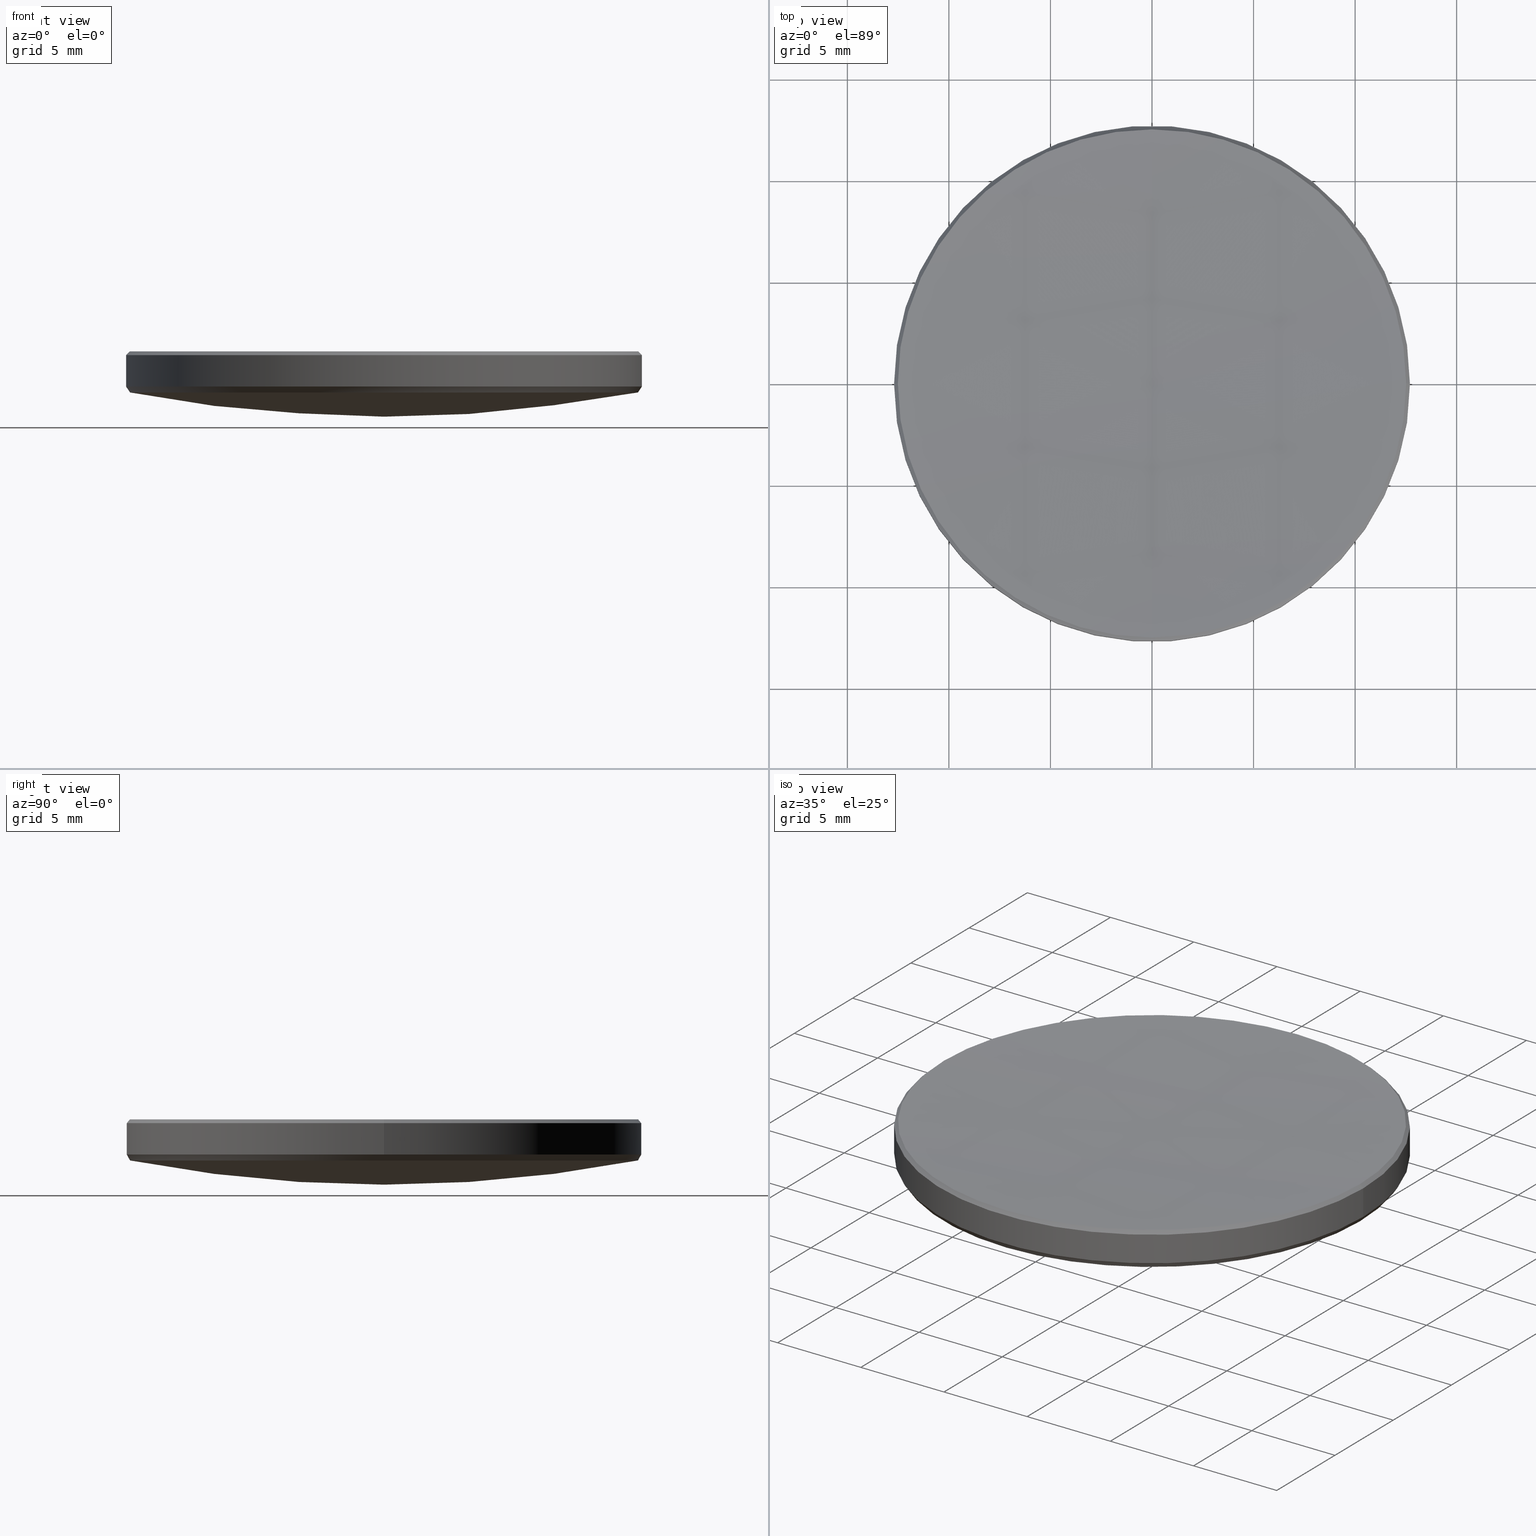
[diagram: canonical four-view strip — front | top / right | iso, engineering-drawing reading convention]
A machine part, canonical four-view strip (front | top / right | iso — engineering-drawing reading convention). The complete STEP part file that produces these views, byte-faithful:
ISO-10303-21;
HEADER;
FILE_DESCRIPTION (( 'STEP AP214' ),
    '1' );
FILE_NAME ('GLM1-025B-200-NIR.STEP',
    '2024-08-09T02:17:12',
    ( 'Windows User' ),
    ( 'P R C' ),
    'SwSTEP 2.0',
    'SolidWorks 2022',
    '' );
FILE_SCHEMA (( 'AUTOMOTIVE_DESIGN' ));
ENDSEC;

DATA;
#1 = AXIS2_PLACEMENT_3D ( 'NONE', #134, #289, #82 ) ;
#2 = PRESENTATION_LAYER_ASSIGNMENT (  '', '', ( #329 ) ) ;
#3 = EDGE_CURVE ( 'NONE', #166, #197, #55, .T. ) ;
#4 = DIRECTION ( 'NONE',  ( 1.000000000000000000, 0.000000000000000000, 0.000000000000000000 ) ) ;
#5 = EDGE_CURVE ( 'NONE', #220, #319, #159, .T. ) ;
#6 = CARTESIAN_POINT ( 'NONE',  ( 12.51297231911478214, 1.532397149842335037E-15, 5.987027680885242731 ) ) ;
#7 = CIRCLE ( 'NONE', #199, 12.69999999999999929 ) ;
#8 = FACE_OUTER_BOUND ( 'NONE', #143, .T. ) ;
#9 = ORIENTED_EDGE ( 'NONE', *, *, #113, .F. ) ;
#10 = CARTESIAN_POINT ( 'NONE',  ( -12.69999999999999929, 0.000000000000000000, 5.800000000000027356 ) ) ;
#11 = ORIENTED_EDGE ( 'NONE', *, *, #198, .F. ) ;
#12 = DIRECTION ( 'NONE',  ( -1.000000000000000000, 0.000000000000000000, 0.000000000000000000 ) ) ;
#13 = ORIENTED_EDGE ( 'NONE', *, *, #5, .F. ) ;
#14 =( NAMED_UNIT ( * ) SI_UNIT ( $, .STERADIAN. ) SOLID_ANGLE_UNIT ( ) );
#15 = CARTESIAN_POINT ( 'NONE',  ( 0.000000000000000000, 0.000000000000000000, 10.00000000000000000 ) ) ;
#16 = ORIENTED_EDGE ( 'NONE', *, *, #198, .T. ) ;
#17 = CARTESIAN_POINT ( 'NONE',  ( 12.69999999999999929, 0.000000000000000000, 4.253353967830220128 ) ) ;
#18 = EDGE_CURVE ( 'NONE', #325, #195, #36, .T. ) ;
#19 = EDGE_LOOP ( 'NONE', ( #11, #253, #218, #90 ) ) ;
#20 = DIRECTION ( 'NONE',  ( 1.000000000000000000, 0.000000000000000000, 0.000000000000000000 ) ) ;
#21 = VECTOR ( 'NONE', #104, 1000.000000000000114 ) ;
#22 = FILL_AREA_STYLE ('',( #129 ) ) ;
#23 = AXIS2_PLACEMENT_3D ( 'NONE', #50, #232, #286 ) ;
#24 = CARTESIAN_POINT ( 'NONE',  ( 0.000000000000000000, 0.000000000000000000, 68.91943083545942272 ) ) ;
#25 = AXIS2_PLACEMENT_3D ( 'NONE', #93, #299, #273 ) ;
#26 = APPLICATION_PROTOCOL_DEFINITION ( 'draft international standard', 'automotive_design', 1998, #193 ) ;
#27 = AXIS2_PLACEMENT_3D ( 'NONE', #80, #186, #4 ) ;
#28 = CARTESIAN_POINT ( 'NONE',  ( 0.000000000000000000, 0.000000000000000000, 68.91943083545942272 ) ) ;
#29 = DIRECTION ( 'NONE',  ( 0.000000000000000000, 0.000000000000000000, -1.000000000000000000 ) ) ;
#30 = DIRECTION ( 'NONE',  ( -0.5581967294551084535, 6.835938380217195988E-17, 0.8297086303188730971 ) ) ;
#31 = ORIENTED_EDGE ( 'NONE', *, *, #113, .T. ) ;
#32 =( NAMED_UNIT ( * ) SI_UNIT ( $, .STERADIAN. ) SOLID_ANGLE_UNIT ( ) );
#33 = CARTESIAN_POINT ( 'NONE',  ( 0.000000000000000000, 1.115592001683281265E-14, 5.556818679172486952 ) ) ;
#34 = AXIS2_PLACEMENT_3D ( 'NONE', #145, #224, #153 ) ;
#35 = DIRECTION ( 'NONE',  ( 1.000000000000000000, 0.000000000000000000, 0.000000000000000000 ) ) ;
#36 = LINE ( 'NONE', #17, #229 ) ;
#37 = ORIENTED_EDGE ( 'NONE', *, *, #313, .F. ) ;
#38 = ADVANCED_FACE ( 'NONE', ( #328 ), #148, .F. ) ;
#39 = DIRECTION ( 'NONE',  ( -1.224646799147352961E-16, -1.000000000000000000, 0.000000000000000000 ) ) ;
#40 = ORIENTED_EDGE ( 'NONE', *, *, #219, .F. ) ;
#41 = EDGE_CURVE ( 'NONE', #197, #220, #81, .T. ) ;
#42 = SURFACE_SIDE_STYLE ('',( #215 ) ) ;
#43 = ORIENTED_EDGE ( 'NONE', *, *, #161, .F. ) ;
#44 = ORIENTED_EDGE ( 'NONE', *, *, #18, .T. ) ;
#45 = AXIS2_PLACEMENT_3D ( 'NONE', #252, #294, #321 ) ;
#46 = PRODUCT_DEFINITION_CONTEXT ( 'detailed design', #193, 'design' ) ;
#47 = CARTESIAN_POINT ( 'NONE',  ( 0.000000000000000000, 0.000000000000000000, 3.961956115965656444 ) ) ;
#48 = DIRECTION ( 'NONE',  ( -1.000000000000000000, 0.000000000000000000, 0.000000000000000000 ) ) ;
#49 =( LENGTH_UNIT ( ) NAMED_UNIT ( * ) SI_UNIT ( .MILLI., .METRE. ) );
#50 = CARTESIAN_POINT ( 'NONE',  ( 0.000000000000000000, 0.000000000000000000, 68.91943083545942272 ) ) ;
#51 = UNCERTAINTY_MEASURE_WITH_UNIT (LENGTH_MEASURE( 1.000000000000000082E-05 ), #251, 'distance_accuracy_value', 'NONE');
#52 = CARTESIAN_POINT ( 'NONE',  ( -1.531293274863309419E-15, -12.50395849586554675, 3.961956115965656444 ) ) ;
#53 = ADVANCED_FACE ( 'NONE', ( #87 ), #173, .T. ) ;
#54 = CIRCLE ( 'NONE', #96, 182.1899999999999977 ) ;
#55 = CIRCLE ( 'NONE', #45, 12.51297231911478569 ) ;
#56 = PRODUCT_DEFINITION ( 'δ֪', '', #107, #46 ) ;
#57 = LINE ( 'NONE', #163, #21 ) ;
#58 = SHAPE_DEFINITION_REPRESENTATION ( #284, #295 ) ;
#59 = DIRECTION ( 'NONE',  ( 1.000000000000000000, 0.000000000000000000, 0.000000000000000000 ) ) ;
#60 = CARTESIAN_POINT ( 'NONE',  ( 0.000000000000000000, 0.000000000000000000, 187.7468186791724918 ) ) ;
#61 = LINE ( 'NONE', #245, #314 ) ;
#62 = VECTOR ( 'NONE', #184, 1000.000000000000114 ) ;
#63 =( NAMED_UNIT ( * ) PLANE_ANGLE_UNIT ( ) SI_UNIT ( $, .RADIAN. ) );
#64 = DIRECTION ( 'NONE',  ( -1.000000000000000000, 1.224646799147353207E-16, 0.000000000000000000 ) ) ;
#65 = VERTEX_POINT ( 'NONE', #33 ) ;
#66 = ORIENTED_EDGE ( 'NONE', *, *, #207, .T. ) ;
#67 = EDGE_CURVE ( 'NONE', #149, #279, #244, .T. ) ;
#68 = FILL_AREA_STYLE ('',( #323 ) ) ;
#69 = DIRECTION ( 'NONE',  ( 0.5581967294551084535, 0.000000000000000000, 0.8297086303188730971 ) ) ;
#70 = CARTESIAN_POINT ( 'NONE',  ( 0.000000000000000000, 0.000000000000000000, 187.7468186791724918 ) ) ;
#71 = ORIENTED_EDGE ( 'NONE', *, *, #185, .F. ) ;
#72 = DIRECTION ( 'NONE',  ( -0.000000000000000000, -0.000000000000000000, 1.000000000000000000 ) ) ;
#73 = AXIS2_PLACEMENT_3D ( 'NONE', #114, #248, #39 ) ;
#74 = CARTESIAN_POINT ( 'NONE',  ( 0.000000000000000000, 0.000000000000000000, 5.800000000000027356 ) ) ;
#75 = DIRECTION ( 'NONE',  ( 0.000000000000000000, 0.000000000000000000, -1.000000000000000000 ) ) ;
#76 = ADVANCED_FACE ( 'NONE', ( #221 ), #201, .T. ) ;
#77 = CIRCLE ( 'NONE', #167, 12.51297231911478569 ) ;
#78 = DIRECTION ( 'NONE',  ( -1.000000000000000000, 0.000000000000000000, 0.000000000000000000 ) ) ;
#79 = LINE ( 'NONE', #242, #132 ) ;
#80 = CARTESIAN_POINT ( 'NONE',  ( 0.000000000000000000, 0.000000000000000000, 4.253353967830220128 ) ) ;
#81 = CIRCLE ( 'NONE', #280, 12.51297231911478569 ) ;
#82 = DIRECTION ( 'NONE',  ( -1.000000000000000000, 0.000000000000000000, 0.000000000000000000 ) ) ;
#83 = EDGE_CURVE ( 'NONE', #298, #94, #183, .T. ) ;
#84 = CARTESIAN_POINT ( 'NONE',  ( 0.000000000000000000, 0.000000000000000000, 5.987027680885242731 ) ) ;
#85 = EDGE_LOOP ( 'NONE', ( #122, #16, #216, #152 ) ) ;
#86 = VECTOR ( 'NONE', #238, 1000.000000000000000 ) ;
#87 = FACE_OUTER_BOUND ( 'NONE', #151, .T. ) ;
#88 = APPLICATION_CONTEXT ( 'automotive_design' ) ;
#89 = EDGE_CURVE ( 'NONE', #200, #325, #301, .T. ) ;
#90 = ORIENTED_EDGE ( 'NONE', *, *, #5, .T. ) ;
#91 = ORIENTED_EDGE ( 'NONE', *, *, #103, .F. ) ;
#92 = EDGE_LOOP ( 'NONE', ( #274, #66, #71, #40, #146 ) ) ;
#93 = CARTESIAN_POINT ( 'NONE',  ( 0.000000000000000000, 0.000000000000000000, 5.987027680885187664 ) ) ;
#94 = VERTEX_POINT ( 'NONE', #10 ) ;
#95 = DIRECTION ( 'NONE',  ( -1.000000000000000000, 0.000000000000000000, 0.000000000000000000 ) ) ;
#96 = AXIS2_PLACEMENT_3D ( 'NONE', #290, #64, #265 ) ;
#97 = DIRECTION ( 'NONE',  ( 0.000000000000000000, 1.000000000000000000, 0.000000000000000000 ) ) ;
#98 = CLOSED_SHELL ( 'NONE', ( #178, #76, #38, #208, #53, #285, #127, #174, #259, #235 ) ) ;
#99 = DIRECTION ( 'NONE',  ( -0.000000000000000000, -0.000000000000000000, 1.000000000000000000 ) ) ;
#100 = CARTESIAN_POINT ( 'NONE',  ( 0.000000000000000000, 0.000000000000000000, 187.7468186791724918 ) ) ;
#101 = EDGE_CURVE ( 'NONE', #326, #149, #213, .T. ) ;
#102 = PRESENTATION_STYLE_ASSIGNMENT (( #202 ) ) ;
#103 = EDGE_CURVE ( 'NONE', #325, #149, #111, .T. ) ;
#104 = DIRECTION ( 'NONE',  ( -0.7071067811865507924, 0.000000000000000000, -0.7071067811865441310 ) ) ;
#105 = MANIFOLD_SOLID_BREP ( '����1', #98 ) ;
#106 = SPHERICAL_SURFACE ( 'NONE', #236, 66.15000000000000568 ) ;
#107 = PRODUCT_DEFINITION_FORMATION_WITH_SPECIFIED_SOURCE ( '�κ�', '', #230, .NOT_KNOWN. ) ;
#108 = CYLINDRICAL_SURFACE ( 'NONE', #1, 12.69999999999999929 ) ;
#109 = EDGE_CURVE ( 'NONE', #319, #166, #77, .T. ) ;
#110 = COLOUR_RGB ( '',1.000000000000000000, 1.000000000000000000, 1.000000000000000000 ) ;
#111 = CIRCLE ( 'NONE', #256, 12.50395849586555030 ) ;
#112 = ORIENTED_EDGE ( 'NONE', *, *, #304, .T. ) ;
#113 = EDGE_CURVE ( 'NONE', #326, #200, #139, .T. ) ;
#114 = CARTESIAN_POINT ( 'NONE',  ( 0.000000000000000000, 0.000000000000000000, 68.91943083545942272 ) ) ;
#115 = ORIENTED_EDGE ( 'NONE', *, *, #101, .T. ) ;
#116 = CONICAL_SURFACE ( 'NONE', #308, 12.51297231911478214, 0.7853981633974530530 ) ;
#117 = PRESENTATION_STYLE_ASSIGNMENT (( #141 ) ) ;
#118 = ORIENTED_EDGE ( 'NONE', *, *, #304, .F. ) ;
#119 = ORIENTED_EDGE ( 'NONE', *, *, #67, .T. ) ;
#120 = DIRECTION ( 'NONE',  ( 0.000000000000000000, 0.000000000000000000, -1.000000000000000000 ) ) ;
#121 = DIRECTION ( 'NONE',  ( 0.000000000000000000, 0.000000000000000000, -1.000000000000000000 ) ) ;
#122 = ORIENTED_EDGE ( 'NONE', *, *, #310, .F. ) ;
#123 = ORIENTED_EDGE ( 'NONE', *, *, #18, .F. ) ;
#124 = AXIS2_PLACEMENT_3D ( 'NONE', #135, #288, #78 ) ;
#125 = AXIS2_PLACEMENT_3D ( 'NONE', #74, #231, #332 ) ;
#126 = SURFACE_STYLE_FILL_AREA ( #22 ) ;
#127 = ADVANCED_FACE ( 'NONE', ( #180 ), #156, .T. ) ;
#128 = DIRECTION ( 'NONE',  ( -1.000000000000000000, 0.000000000000000000, 0.000000000000000000 ) ) ;
#129 = FILL_AREA_STYLE_COLOUR ( '', #227 ) ;
#130 = FACE_OUTER_BOUND ( 'NONE', #19, .T. ) ;
#131 = AXIS2_PLACEMENT_3D ( 'NONE', #297, #142, #254 ) ;
#132 = VECTOR ( 'NONE', #30, 1000.000000000000000 ) ;
#133 = DIRECTION ( 'NONE',  ( -1.000000000000000000, 0.000000000000000000, 0.000000000000000000 ) ) ;
#134 = CARTESIAN_POINT ( 'NONE',  ( 0.000000000000000000, 0.000000000000000000, 10.00000000000000000 ) ) ;
#135 = CARTESIAN_POINT ( 'NONE',  ( 0.000000000000000000, 0.000000000000000000, 4.253353967830220128 ) ) ;
#136 = FACE_OUTER_BOUND ( 'NONE', #190, .T. ) ;
#137 = ORIENTED_EDGE ( 'NONE', *, *, #67, .F. ) ;
#138 = STYLED_ITEM ( 'NONE', ( #117 ), #295 ) ;
#139 = CIRCLE ( 'NONE', #155, 66.15000000000000568 ) ;
#140 = AXIS2_PLACEMENT_3D ( 'NONE', #171, #246, #275 ) ;
#141 = SURFACE_STYLE_USAGE ( .BOTH. , #42 ) ;
#142 = DIRECTION ( 'NONE',  ( 0.000000000000000000, 0.000000000000000000, -1.000000000000000000 ) ) ;
#143 = EDGE_LOOP ( 'NONE', ( #281, #169, #13, #276, #322 ) ) ;
#144 = APPLICATION_PROTOCOL_DEFINITION ( 'draft international standard', 'automotive_design', 1998, #88 ) ;
#145 = CARTESIAN_POINT ( 'NONE',  ( 0.000000000000000000, 0.000000000000000000, 5.800000000000027356 ) ) ;
#146 = ORIENTED_EDGE ( 'NONE', *, *, #41, .F. ) ;
#147 =( NAMED_UNIT ( * ) PLANE_ANGLE_UNIT ( ) SI_UNIT ( $, .RADIAN. ) );
#148 = SPHERICAL_SURFACE ( 'NONE', #234, 182.1899999999999977 ) ;
#149 = VERTEX_POINT ( 'NONE', #52 ) ;
#150 = CARTESIAN_POINT ( 'NONE',  ( 0.000000000000000000, 0.000000000000000000, 0.000000000000000000 ) ) ;
#151 = EDGE_LOOP ( 'NONE', ( #192, #112, #165, #37 ) ) ;
#152 = ORIENTED_EDGE ( 'NONE', *, *, #3, .T. ) ;
#153 = DIRECTION ( 'NONE',  ( 1.000000000000000000, 0.000000000000000000, 0.000000000000000000 ) ) ;
#154 = AXIS2_PLACEMENT_3D ( 'NONE', #312, #29, #59 ) ;
#155 = AXIS2_PLACEMENT_3D ( 'NONE', #24, #307, #75 ) ;
#156 = SPHERICAL_SURFACE ( 'NONE', #23, 66.15000000000000568 ) ;
#157 = CARTESIAN_POINT ( 'NONE',  ( 0.000000000000000000, 0.000000000000000000, 4.253353967830220128 ) ) ;
#158 =( NAMED_UNIT ( * ) PLANE_ANGLE_UNIT ( ) SI_UNIT ( $, .RADIAN. ) );
#159 = CIRCLE ( 'NONE', #25, 12.51297231911478569 ) ;
#160 = FACE_OUTER_BOUND ( 'NONE', #268, .T. ) ;
#161 = EDGE_CURVE ( 'NONE', #293, #195, #7, .T. ) ;
#162 = CARTESIAN_POINT ( 'NONE',  ( -12.69999999999999929, 0.000000000000000000, 4.253353967830220128 ) ) ;
#163 = CARTESIAN_POINT ( 'NONE',  ( -12.51297231911478214, 0.000000000000000000, 5.987027680885242731 ) ) ;
#164 = CARTESIAN_POINT ( 'NONE',  ( 0.000000000000000000, 4.050519288179870232E-15, 2.769430835459427254 ) ) ;
#165 = ORIENTED_EDGE ( 'NONE', *, *, #247, .T. ) ;
#166 = VERTEX_POINT ( 'NONE', #260 ) ;
#167 = AXIS2_PLACEMENT_3D ( 'NONE', #204, #99, #258 ) ;
#168 = ORIENTED_EDGE ( 'NONE', *, *, #89, .F. ) ;
#169 = ORIENTED_EDGE ( 'NONE', *, *, #109, .F. ) ;
#170 = CARTESIAN_POINT ( 'NONE',  ( -1.532397149842306047E-15, -12.51297231911454411, 5.987027680885187664 ) ) ;
#171 = CARTESIAN_POINT ( 'NONE',  ( 0.000000000000000000, 0.000000000000000000, 4.253353967830220128 ) ) ;
#172 = PRODUCT_CONTEXT ( 'NONE', #88, 'mechanical' ) ;
#173 = CYLINDRICAL_SURFACE ( 'NONE', #176, 12.69999999999999929 ) ;
#174 = ADVANCED_FACE ( 'NONE', ( #130 ), #303, .F. ) ;
#175 = ORIENTED_EDGE ( 'NONE', *, *, #266, .F. ) ;
#176 = AXIS2_PLACEMENT_3D ( 'NONE', #15, #196, #95 ) ;
#177 = CARTESIAN_POINT ( 'NONE',  ( 0.000000000000000000, 0.000000000000000000, 5.987027680885242731 ) ) ;
#178 = ADVANCED_FACE ( 'NONE', ( #331 ), #309, .T. ) ;
#179 = CONICAL_SURFACE ( 'NONE', #27, 12.69999999999999929, 0.5922108289621466071 ) ;
#180 = FACE_OUTER_BOUND ( 'NONE', #194, .T. ) ;
#181 = AXIS2_PLACEMENT_3D ( 'NONE', #60, #315, #188 ) ;
#182 = MECHANICAL_DESIGN_GEOMETRIC_PRESENTATION_REPRESENTATION (  '', ( #329 ), #296 ) ;
#183 = CIRCLE ( 'NONE', #34, 12.69999999999999929 ) ;
#184 = DIRECTION ( 'NONE',  ( 0.7071067811865507924, 8.659560562354974766E-17, -0.7071067811865441310 ) ) ;
#185 = EDGE_CURVE ( 'NONE', #94, #298, #270, .T. ) ;
#186 = DIRECTION ( 'NONE',  ( -0.000000000000000000, -0.000000000000000000, 1.000000000000000000 ) ) ;
#187 = CARTESIAN_POINT ( 'NONE',  ( -12.50395849586555030, 1.543297354890224221E-15, 3.961956115965656444 ) ) ;
#188 = DIRECTION ( 'NONE',  ( 0.000000000000000000, 0.000000000000000000, -1.000000000000000000 ) ) ;
#189 = DIRECTION ( 'NONE',  ( 0.000000000000000000, 0.000000000000000000, -1.000000000000000000 ) ) ;
#190 = EDGE_LOOP ( 'NONE', ( #9, #115, #119, #271 ) ) ;
#191 = CIRCLE ( 'NONE', #124, 12.69999999999999929 ) ;
#192 = ORIENTED_EDGE ( 'NONE', *, *, #185, .T. ) ;
#193 = APPLICATION_CONTEXT ( 'automotive_design' ) ;
#194 = EDGE_LOOP ( 'NONE', ( #217, #31, #317, #302 ) ) ;
#195 = VERTEX_POINT ( 'NONE', #203 ) ;
#196 = DIRECTION ( 'NONE',  ( -0.000000000000000000, -0.000000000000000000, -1.000000000000000000 ) ) ;
#197 = VERTEX_POINT ( 'NONE', #292 ) ;
#198 = EDGE_CURVE ( 'NONE', #65, #319, #54, .T. ) ;
#199 = AXIS2_PLACEMENT_3D ( 'NONE', #157, #257, #128 ) ;
#200 = VERTEX_POINT ( 'NONE', #263 ) ;
#201 = CONICAL_SURFACE ( 'NONE', #140, 12.69999999999999929, 0.5922108289621466071 ) ;
#202 = SURFACE_STYLE_USAGE ( .BOTH. , #306 ) ;
#203 = CARTESIAN_POINT ( 'NONE',  ( 12.69999999999999929, 1.555301434917138433E-15, 4.253353967830220128 ) ) ;
#204 = CARTESIAN_POINT ( 'NONE',  ( 0.000000000000000000, 0.000000000000000000, 5.987027680885187664 ) ) ;
#205 = UNCERTAINTY_MEASURE_WITH_UNIT (LENGTH_MEASURE( 1.000000000000000082E-05 ), #277, 'distance_accuracy_value', 'NONE');
#206 = MECHANICAL_DESIGN_GEOMETRIC_PRESENTATION_REPRESENTATION (  '', ( #138 ), #210 ) ;
#207 = EDGE_CURVE ( 'NONE', #166, #298, #287, .T. ) ;
#208 = ADVANCED_FACE ( 'NONE', ( #136 ), #106, .T. ) ;
#209 = AXIS2_PLACEMENT_3D ( 'NONE', #100, #48, #228 ) ;
#210 =( GEOMETRIC_REPRESENTATION_CONTEXT ( 3 ) GLOBAL_UNCERTAINTY_ASSIGNED_CONTEXT ( ( #205 ) ) GLOBAL_UNIT_ASSIGNED_CONTEXT ( ( #277, #147, #32 ) ) REPRESENTATION_CONTEXT ( 'NONE', 'WORKASPACE' ) );
#211 = DIRECTION ( 'NONE',  ( -1.000000000000000000, 0.000000000000000000, 0.000000000000000000 ) ) ;
#212 = CARTESIAN_POINT ( 'NONE',  ( 12.69999999999999929, 1.555301434917138433E-15, 5.800000000000027356 ) ) ;
#213 = CIRCLE ( 'NONE', #73, 66.15000000000000568 ) ;
#214 = EDGE_LOOP ( 'NONE', ( #118, #278, #318, #225 ) ) ;
#215 = SURFACE_STYLE_FILL_AREA ( #68 ) ;
#216 = ORIENTED_EDGE ( 'NONE', *, *, #109, .T. ) ;
#217 = ORIENTED_EDGE ( 'NONE', *, *, #101, .F. ) ;
#218 = ORIENTED_EDGE ( 'NONE', *, *, #41, .T. ) ;
#219 = EDGE_CURVE ( 'NONE', #220, #94, #57, .T. ) ;
#220 = VERTEX_POINT ( 'NONE', #316 ) ;
#221 = FACE_OUTER_BOUND ( 'NONE', #250, .T. ) ;
#222 = ORIENTED_EDGE ( 'NONE', *, *, #233, .F. ) ;
#223 = DIRECTION ( 'NONE',  ( -0.000000000000000000, -0.000000000000000000, -1.000000000000000000 ) ) ;
#224 = DIRECTION ( 'NONE',  ( 0.000000000000000000, 0.000000000000000000, -1.000000000000000000 ) ) ;
#225 = ORIENTED_EDGE ( 'NONE', *, *, #161, .T. ) ;
#226 = CARTESIAN_POINT ( 'NONE',  ( 0.000000000000000000, 0.000000000000000000, 5.987027680885187664 ) ) ;
#227 = COLOUR_RGB ( '',1.000000000000000000, 1.000000000000000000, 1.000000000000000000 ) ;
#228 = DIRECTION ( 'NONE',  ( 0.000000000000000000, 1.000000000000000000, 0.000000000000000000 ) ) ;
#229 = VECTOR ( 'NONE', #69, 1000.000000000000000 ) ;
#230 = PRODUCT ( 'GLM1-025B-200-NIR', 'GLM1-025B-200-NIR', '', ( #172 ) ) ;
#231 = DIRECTION ( 'NONE',  ( 0.000000000000000000, 0.000000000000000000, -1.000000000000000000 ) ) ;
#232 = DIRECTION ( 'NONE',  ( -1.000000000000000000, 0.000000000000000000, 0.000000000000000000 ) ) ;
#233 = EDGE_CURVE ( 'NONE', #279, #293, #79, .T. ) ;
#234 = AXIS2_PLACEMENT_3D ( 'NONE', #70, #12, #97 ) ;
#235 = ADVANCED_FACE ( 'NONE', ( #8 ), #116, .T. ) ;
#236 = AXIS2_PLACEMENT_3D ( 'NONE', #28, #133, #237 ) ;
#237 = DIRECTION ( 'NONE',  ( 0.000000000000000000, 1.000000000000000000, 0.000000000000000000 ) ) ;
#238 = DIRECTION ( 'NONE',  ( -0.000000000000000000, -0.000000000000000000, -1.000000000000000000 ) ) ;
#239 = FACE_OUTER_BOUND ( 'NONE', #214, .T. ) ;
#240 =( GEOMETRIC_REPRESENTATION_CONTEXT ( 3 ) GLOBAL_UNCERTAINTY_ASSIGNED_CONTEXT ( ( #51 ) ) GLOBAL_UNIT_ASSIGNED_CONTEXT ( ( #251, #63, #14 ) ) REPRESENTATION_CONTEXT ( 'NONE', 'WORKASPACE' ) );
#241 = AXIS2_PLACEMENT_3D ( 'NONE', #177, #282, #255 ) ;
#242 = CARTESIAN_POINT ( 'NONE',  ( -12.69999999999999929, 1.555301434917138433E-15, 4.253353967830220128 ) ) ;
#243 = ORIENTED_EDGE ( 'NONE', *, *, #247, .F. ) ;
#244 = CIRCLE ( 'NONE', #261, 12.50395849586555030 ) ;
#245 = CARTESIAN_POINT ( 'NONE',  ( -12.69999999999999929, 0.000000000000000000, 10.00000000000000000 ) ) ;
#246 = DIRECTION ( 'NONE',  ( -0.000000000000000000, -0.000000000000000000, 1.000000000000000000 ) ) ;
#247 = EDGE_CURVE ( 'NONE', #195, #293, #191, .T. ) ;
#248 = DIRECTION ( 'NONE',  ( -1.000000000000000000, 1.224646799147353207E-16, 0.000000000000000000 ) ) ;
#249 = CARTESIAN_POINT ( 'NONE',  ( 0.000000000000000000, 0.000000000000000000, 3.961956115965656444 ) ) ;
#250 = EDGE_LOOP ( 'NONE', ( #175, #327, #243, #123, #168 ) ) ;
#251 =( LENGTH_UNIT ( ) NAMED_UNIT ( * ) SI_UNIT ( .MILLI., .METRE. ) );
#252 = CARTESIAN_POINT ( 'NONE',  ( 0.000000000000000000, 0.000000000000000000, 5.987027680885187664 ) ) ;
#253 = ORIENTED_EDGE ( 'NONE', *, *, #310, .T. ) ;
#254 = DIRECTION ( 'NONE',  ( 1.000000000000000000, 0.000000000000000000, 0.000000000000000000 ) ) ;
#255 = DIRECTION ( 'NONE',  ( -1.000000000000000000, 0.000000000000000000, 0.000000000000000000 ) ) ;
#256 = AXIS2_PLACEMENT_3D ( 'NONE', #249, #120, #324 ) ;
#257 = DIRECTION ( 'NONE',  ( -0.000000000000000000, -0.000000000000000000, 1.000000000000000000 ) ) ;
#258 = DIRECTION ( 'NONE',  ( 1.000000000000000000, 0.000000000000000000, 0.000000000000000000 ) ) ;
#259 = ADVANCED_FACE ( 'NONE', ( #160 ), #179, .T. ) ;
#260 = CARTESIAN_POINT ( 'NONE',  ( 12.51297231911478569, 1.543849292379736932E-15, 5.987027680885187664 ) ) ;
#261 = AXIS2_PLACEMENT_3D ( 'NONE', #47, #121, #20 ) ;
#262 = CIRCLE ( 'NONE', #154, 12.50395849586555030 ) ;
#263 = CARTESIAN_POINT ( 'NONE',  ( 0.000000000000000000, 12.50395849586554675, 3.961956115965656444 ) ) ;
#264 = CARTESIAN_POINT ( 'NONE',  ( 12.69999999999999929, 1.555301434917138433E-15, 10.00000000000000000 ) ) ;
#265 = DIRECTION ( 'NONE',  ( -1.224646799147352961E-16, -1.000000000000000000, 0.000000000000000000 ) ) ;
#266 = EDGE_CURVE ( 'NONE', #279, #200, #262, .T. ) ;
#267 = LINE ( 'NONE', #264, #86 ) ;
#268 = EDGE_LOOP ( 'NONE', ( #222, #137, #91, #44, #43 ) ) ;
#269 = DIRECTION ( 'NONE',  ( 1.000000000000000000, 0.000000000000000000, 0.000000000000000000 ) ) ;
#270 = CIRCLE ( 'NONE', #125, 12.69999999999999929 ) ;
#271 = ORIENTED_EDGE ( 'NONE', *, *, #266, .T. ) ;
#272 = DIRECTION ( 'NONE',  ( 0.000000000000000000, 0.000000000000000000, 1.000000000000000000 ) ) ;
#273 = DIRECTION ( 'NONE',  ( 1.000000000000000000, 0.000000000000000000, 0.000000000000000000 ) ) ;
#274 = ORIENTED_EDGE ( 'NONE', *, *, #3, .F. ) ;
#275 = DIRECTION ( 'NONE',  ( 1.000000000000000000, 0.000000000000000000, 0.000000000000000000 ) ) ;
#276 = ORIENTED_EDGE ( 'NONE', *, *, #219, .T. ) ;
#277 =( LENGTH_UNIT ( ) NAMED_UNIT ( * ) SI_UNIT ( .MILLI., .METRE. ) );
#278 = ORIENTED_EDGE ( 'NONE', *, *, #83, .T. ) ;
#279 = VERTEX_POINT ( 'NONE', #187 ) ;
#280 = AXIS2_PLACEMENT_3D ( 'NONE', #226, #72, #269 ) ;
#281 = ORIENTED_EDGE ( 'NONE', *, *, #207, .F. ) ;
#282 = DIRECTION ( 'NONE',  ( 0.000000000000000000, 0.000000000000000000, -1.000000000000000000 ) ) ;
#283 =( NAMED_UNIT ( * ) SI_UNIT ( $, .STERADIAN. ) SOLID_ANGLE_UNIT ( ) );
#284 = PRODUCT_DEFINITION_SHAPE ( 'NONE', 'NONE',  #56 ) ;
#285 = ADVANCED_FACE ( 'NONE', ( #239 ), #108, .T. ) ;
#286 = DIRECTION ( 'NONE',  ( 0.000000000000000000, 1.000000000000000000, 0.000000000000000000 ) ) ;
#287 = LINE ( 'NONE', #6, #62 ) ;
#288 = DIRECTION ( 'NONE',  ( -0.000000000000000000, -0.000000000000000000, 1.000000000000000000 ) ) ;
#289 = DIRECTION ( 'NONE',  ( -0.000000000000000000, -0.000000000000000000, -1.000000000000000000 ) ) ;
#290 = CARTESIAN_POINT ( 'NONE',  ( 0.000000000000000000, 0.000000000000000000, 187.7468186791724918 ) ) ;
#291 = UNCERTAINTY_MEASURE_WITH_UNIT (LENGTH_MEASURE( 1.000000000000000082E-05 ), #49, 'distance_accuracy_value', 'NONE');
#292 = CARTESIAN_POINT ( 'NONE',  ( 0.000000000000000000, 12.51297231911454411, 5.987027680885187664 ) ) ;
#293 = VERTEX_POINT ( 'NONE', #162 ) ;
#294 = DIRECTION ( 'NONE',  ( -0.000000000000000000, -0.000000000000000000, 1.000000000000000000 ) ) ;
#295 = ADVANCED_BREP_SHAPE_REPRESENTATION ( 'GLM1-025B-200-NIR', ( #105, #311 ), #240 ) ;
#296 =( GEOMETRIC_REPRESENTATION_CONTEXT ( 3 ) GLOBAL_UNCERTAINTY_ASSIGNED_CONTEXT ( ( #291 ) ) GLOBAL_UNIT_ASSIGNED_CONTEXT ( ( #49, #158, #283 ) ) REPRESENTATION_CONTEXT ( 'NONE', 'WORKASPACE' ) );
#297 = CARTESIAN_POINT ( 'NONE',  ( 0.000000000000000000, 0.000000000000000000, 3.961956115965656444 ) ) ;
#298 = VERTEX_POINT ( 'NONE', #212 ) ;
#299 = DIRECTION ( 'NONE',  ( -0.000000000000000000, -0.000000000000000000, 1.000000000000000000 ) ) ;
#300 = PRESENTATION_LAYER_ASSIGNMENT (  '', '', ( #138 ) ) ;
#301 = CIRCLE ( 'NONE', #131, 12.50395849586555030 ) ;
#302 = ORIENTED_EDGE ( 'NONE', *, *, #103, .T. ) ;
#303 = SPHERICAL_SURFACE ( 'NONE', #209, 182.1899999999999977 ) ;
#304 = EDGE_CURVE ( 'NONE', #298, #195, #267, .T. ) ;
#305 = CIRCLE ( 'NONE', #181, 182.1899999999999977 ) ;
#306 = SURFACE_SIDE_STYLE ('',( #126 ) ) ;
#307 = DIRECTION ( 'NONE',  ( 1.000000000000000000, -0.000000000000000000, 0.000000000000000000 ) ) ;
#308 = AXIS2_PLACEMENT_3D ( 'NONE', #84, #189, #211 ) ;
#309 = CONICAL_SURFACE ( 'NONE', #241, 12.51297231911478214, 0.7853981633974530530 ) ;
#310 = EDGE_CURVE ( 'NONE', #65, #197, #305, .T. ) ;
#311 = AXIS2_PLACEMENT_3D ( 'NONE', #150, #272, #35 ) ;
#312 = CARTESIAN_POINT ( 'NONE',  ( 0.000000000000000000, 0.000000000000000000, 3.961956115965656444 ) ) ;
#313 = EDGE_CURVE ( 'NONE', #94, #293, #61, .T. ) ;
#314 = VECTOR ( 'NONE', #223, 1000.000000000000000 ) ;
#315 = DIRECTION ( 'NONE',  ( 1.000000000000000000, 0.000000000000000000, 0.000000000000000000 ) ) ;
#316 = CARTESIAN_POINT ( 'NONE',  ( -12.51297231911478569, 0.000000000000000000, 5.987027680885187664 ) ) ;
#317 = ORIENTED_EDGE ( 'NONE', *, *, #89, .T. ) ;
#318 = ORIENTED_EDGE ( 'NONE', *, *, #313, .T. ) ;
#319 = VERTEX_POINT ( 'NONE', #170 ) ;
#320 = CARTESIAN_POINT ( 'NONE',  ( 12.50395849586555030, 0.000000000000000000, 3.961956115965656444 ) ) ;
#321 = DIRECTION ( 'NONE',  ( 1.000000000000000000, 0.000000000000000000, 0.000000000000000000 ) ) ;
#322 = ORIENTED_EDGE ( 'NONE', *, *, #83, .F. ) ;
#323 = FILL_AREA_STYLE_COLOUR ( '', #110 ) ;
#324 = DIRECTION ( 'NONE',  ( 1.000000000000000000, 0.000000000000000000, 0.000000000000000000 ) ) ;
#325 = VERTEX_POINT ( 'NONE', #320 ) ;
#326 = VERTEX_POINT ( 'NONE', #164 ) ;
#327 = ORIENTED_EDGE ( 'NONE', *, *, #233, .T. ) ;
#328 = FACE_OUTER_BOUND ( 'NONE', #85, .T. ) ;
#329 = STYLED_ITEM ( 'NONE', ( #102 ), #105 ) ;
#330 = PRODUCT_RELATED_PRODUCT_CATEGORY ( 'part', '', ( #230 ) ) ;
#331 = FACE_OUTER_BOUND ( 'NONE', #92, .T. ) ;
#332 = DIRECTION ( 'NONE',  ( 1.000000000000000000, 0.000000000000000000, 0.000000000000000000 ) ) ;
ENDSEC;
END-ISO-10303-21;
